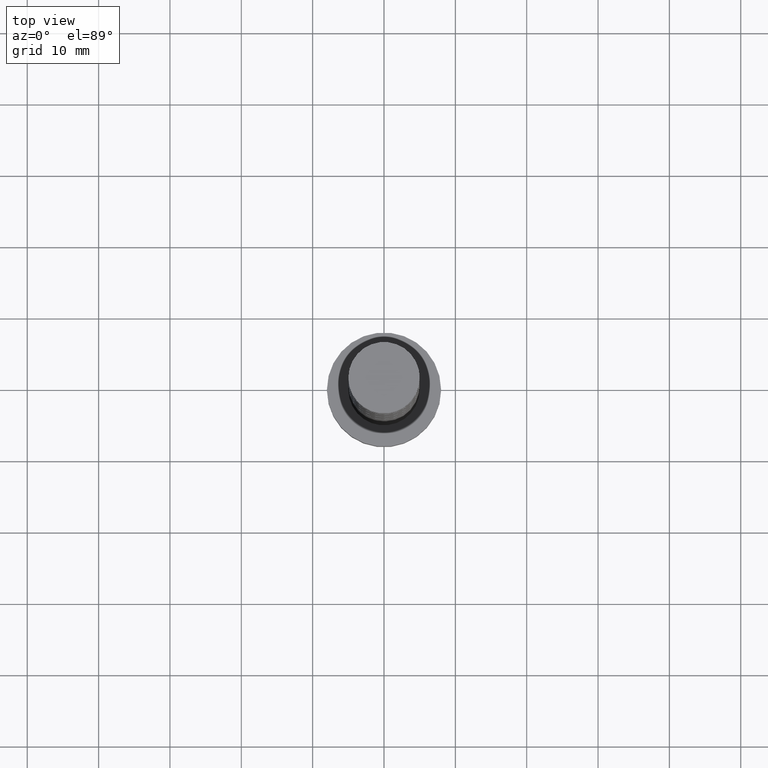
[diagram: clean part render]
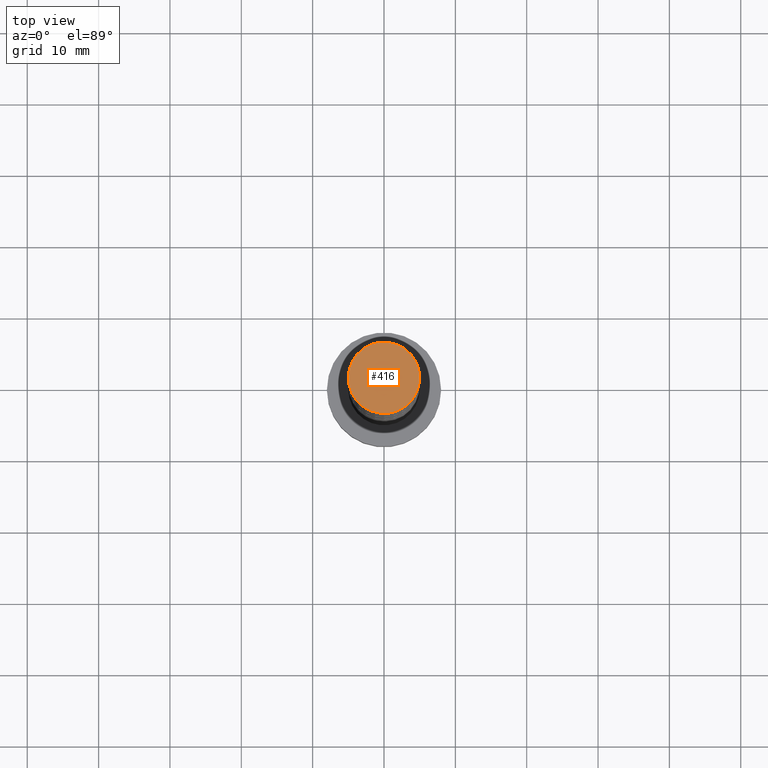
[diagram: same view with one face highlighted and labeled with its STEP entity id]
A machine part, top view. The second image highlights one B-rep face of the part: STEP entity #416.
In plain terms, the highlighted planar face has unit normal (0, 0, 1).
Its self-contained STEP definition (entity closure, byte-faithful):
#78 = DIRECTION ( 'NONE',  ( 0.000000000000000000, 0.000000000000000000, 1.000000000000000000 ) ) ;
#88 = DIRECTION ( 'NONE',  ( 0.000000000000000000, 0.000000000000000000, 1.000000000000000000 ) ) ;
#207 = ORIENTED_EDGE ( 'NONE', *, *, #1249, .T. ) ;
#228 = AXIS2_PLACEMENT_3D ( 'NONE', #523, #78, #288 ) ;
#233 = FACE_OUTER_BOUND ( 'NONE', #530, .T. ) ;
#267 = AXIS2_PLACEMENT_3D ( 'NONE', #701, #88, #436 ) ;
#288 = DIRECTION ( 'NONE',  ( 1.000000000000000000, 0.000000000000000000, 0.000000000000000000 ) ) ;
#298 = CIRCLE ( 'NONE', #490, 5.000000000000000000 ) ;
#416 = ADVANCED_FACE ( 'NONE', ( #233 ), #1373, .T. ) ;
#436 = DIRECTION ( 'NONE',  ( 1.000000000000000000, 0.000000000000000000, -0.000000000000000000 ) ) ;
#490 = AXIS2_PLACEMENT_3D ( 'NONE', #541, #1367, #1108 ) ;
#513 = CARTESIAN_POINT ( 'NONE',  ( 5.000000000000000000, 6.123233995736766282E-16, 100.0000000000000000 ) ) ;
#523 = CARTESIAN_POINT ( 'NONE',  ( 0.000000000000000000, 0.000000000000000000, 100.0000000000000000 ) ) ;
#530 = EDGE_LOOP ( 'NONE', ( #207, #673 ) ) ;
#541 = CARTESIAN_POINT ( 'NONE',  ( 0.000000000000000000, 0.000000000000000000, 100.0000000000000000 ) ) ;
#673 = ORIENTED_EDGE ( 'NONE', *, *, #1266, .T. ) ;
#701 = CARTESIAN_POINT ( 'NONE',  ( 0.000000000000000000, 0.000000000000000000, 100.0000000000000000 ) ) ;
#735 = CIRCLE ( 'NONE', #228, 5.000000000000000000 ) ;
#1108 = DIRECTION ( 'NONE',  ( 1.000000000000000000, 0.000000000000000000, 0.000000000000000000 ) ) ;
#1125 = CARTESIAN_POINT ( 'NONE',  ( -5.000000000000000000, 0.000000000000000000, 100.0000000000000000 ) ) ;
#1171 = VERTEX_POINT ( 'NONE', #513 ) ;
#1249 = EDGE_CURVE ( 'NONE', #1387, #1171, #735, .T. ) ;
#1266 = EDGE_CURVE ( 'NONE', #1171, #1387, #298, .T. ) ;
#1367 = DIRECTION ( 'NONE',  ( 0.000000000000000000, 0.000000000000000000, 1.000000000000000000 ) ) ;
#1373 = PLANE ( 'NONE',  #267 ) ;
#1387 = VERTEX_POINT ( 'NONE', #1125 ) ;